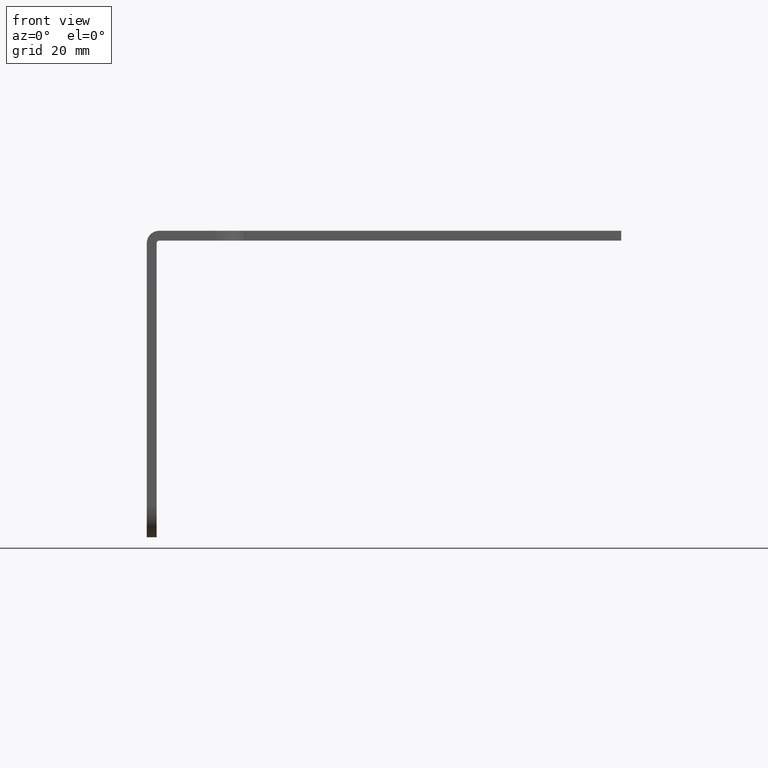
[diagram: clean part render]
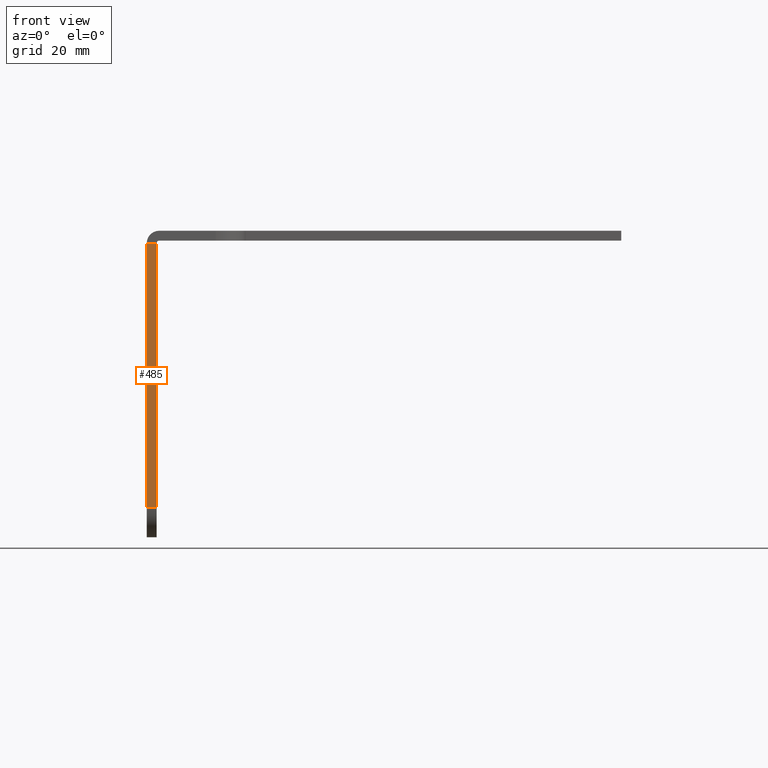
[diagram: same view with one face highlighted and labeled with its STEP entity id]
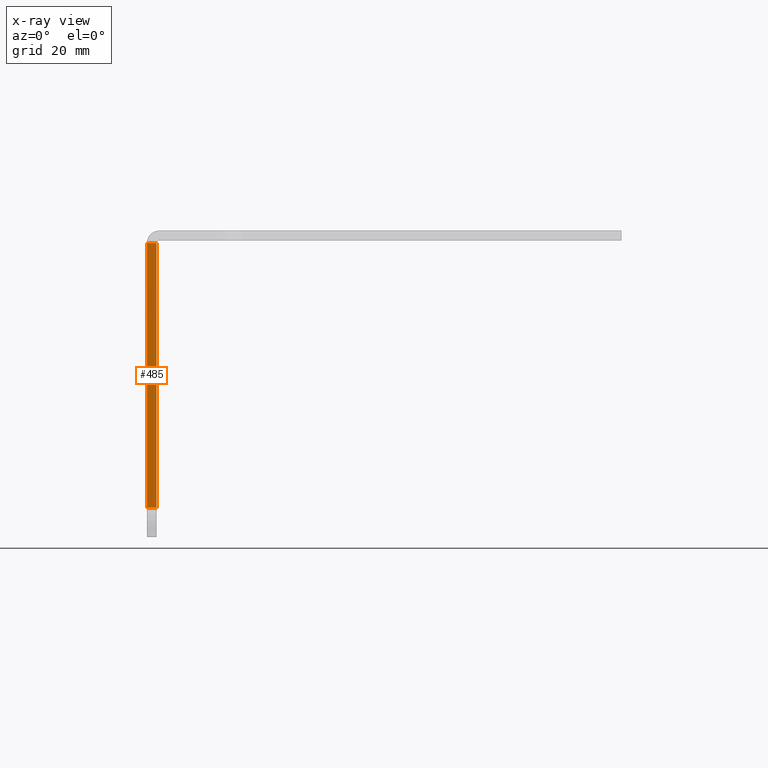
[diagram: x-ray of the same camera — body ghosted, the highlighted face saturated]
A machine part, front view. The second image highlights one B-rep face of the part: STEP entity #485.
The next image is the same camera in x-ray: the body ghosted, the highlighted face saturated — about 0% of this face is hidden behind the body in this view.
In plain terms, the highlighted planar face has unit normal (-0, -1, 0).
Its self-contained STEP definition (entity closure, byte-faithful):
#37=PLANE('',#522);
#53=FACE_OUTER_BOUND('',#83,.T.);
#83=EDGE_LOOP('',(#343,#344,#345,#346));
#135=LINE('',#747,#169);
#136=LINE('',#750,#170);
#137=LINE('',#752,#171);
#138=LINE('',#753,#172);
#169=VECTOR('',#600,0.125);
#170=VECTOR('',#603,3.34375);
#171=VECTOR('',#604,0.125);
#172=VECTOR('',#605,3.34375);
#232=VERTEX_POINT('',#740);
#235=VERTEX_POINT('',#745);
#236=VERTEX_POINT('',#749);
#237=VERTEX_POINT('',#751);
#279=EDGE_CURVE('',#235,#232,#135,.T.);
#280=EDGE_CURVE('',#235,#236,#136,.T.);
#281=EDGE_CURVE('',#236,#237,#137,.T.);
#282=EDGE_CURVE('',#237,#232,#138,.T.);
#343=ORIENTED_EDGE('',*,*,#279,.F.);
#344=ORIENTED_EDGE('',*,*,#280,.T.);
#345=ORIENTED_EDGE('',*,*,#281,.T.);
#346=ORIENTED_EDGE('',*,*,#282,.T.);
#485=ADVANCED_FACE('',(#53),#37,.T.);
#522=AXIS2_PLACEMENT_3D('',#748,#601,#602);
#600=DIRECTION('',(-1.,5.95194116066427E-17,-1.71512449944288E-15));
#601=DIRECTION('center_axis',(-5.95194116066427E-17,-1.,0.));
#602=DIRECTION('ref_axis',(1.,0.,1.71841707530262E-15));
#603=DIRECTION('',(-1.72915050606973E-15,-5.95194116066426E-17,1.));
#604=DIRECTION('',(-1.,5.95194116066427E-17,-1.71512449944288E-15));
#605=DIRECTION('',(1.80915516651892E-15,-1.04204263129973E-31,-1.));
#740=CARTESIAN_POINT('',(-2.99999999999999,-2.9375,-3.375));
#745=CARTESIAN_POINT('',(-2.87499999999999,-2.9375,-3.375));
#747=CARTESIAN_POINT('',(-2.87499999999999,-2.9375,-3.375));
#748=CARTESIAN_POINT('Origin',(-2.875,-2.9375,-0.0312500000000006));
#749=CARTESIAN_POINT('',(-2.875,-2.9375,-0.0312500000000006));
#750=CARTESIAN_POINT('',(-2.875,-2.9375,0.146642684009521));
#751=CARTESIAN_POINT('',(-3.,-2.9375,-0.031250000000001));
#752=CARTESIAN_POINT('',(-2.8876875,-2.9375,-0.0312500000000006));
#753=CARTESIAN_POINT('',(-3.,-2.9375,-0.031250000000001));